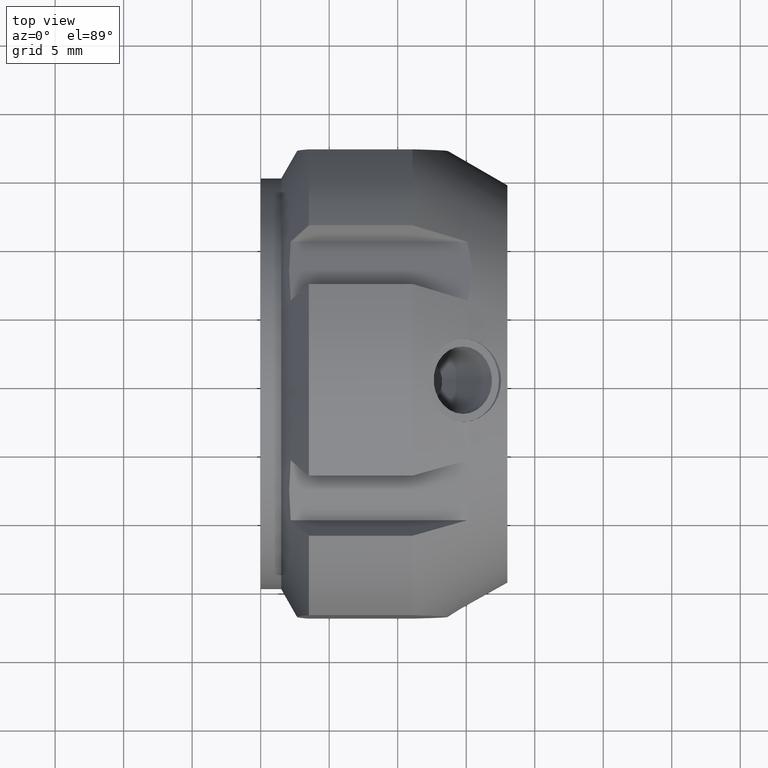
[diagram: clean part render]
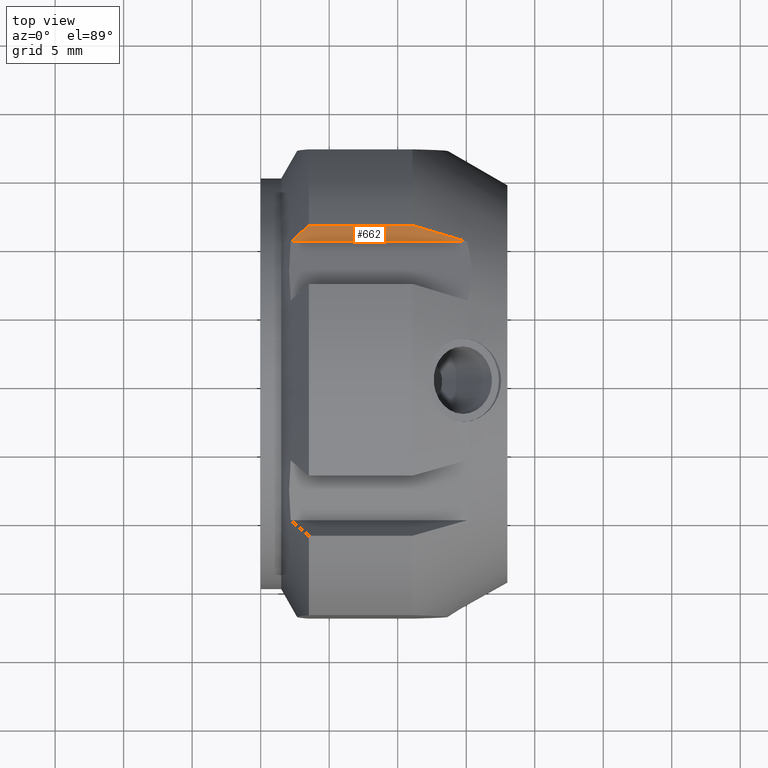
[diagram: same view with one face highlighted and labeled with its STEP entity id]
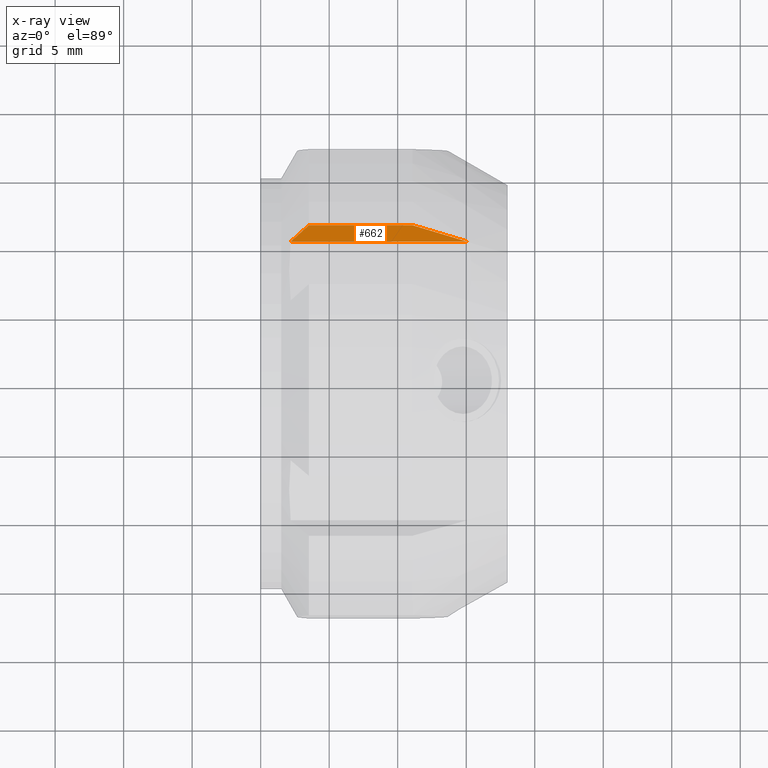
[diagram: x-ray of the same camera — body ghosted, the highlighted face saturated]
A machine part, top view. The second image highlights one B-rep face of the part: STEP entity #662.
The next image is the same camera in x-ray: the body ghosted, the highlighted face saturated — about 0% of this face is hidden behind the body in this view.
In plain terms, the highlighted planar face has unit normal (0, 0.866, -0.5).
Its self-contained STEP definition (entity closure, byte-faithful):
#487=CARTESIAN_POINT('',(2.189434013992775,10.165063509461094,12.606406460551018));
#488=VERTEX_POINT('',#487);
#502=CARTESIAN_POINT('',(3.520725942163683,11.330214899372773,14.624507866387543));
#503=VERTEX_POINT('',#502);
#504=CARTESIAN_POINT('',(2.189434013992775,10.165063509461094,12.606406460551018));
#505=CARTESIAN_POINT('',(2.809896670171859,10.708919661000643,13.548392947026397));
#506=CARTESIAN_POINT('',(3.520725942163683,11.33021489937277,14.624507866387544));
#514=(BOUNDED_CURVE()B_SPLINE_CURVE(2,(#504,#505,#506),.UNSPECIFIED.,.F.,.U.)B_SPLINE_CURVE_WITH_KNOTS((3,3),(0.149067659542989,0.407623225126853),.UNSPECIFIED.)CURVE()GEOMETRIC_REPRESENTATION_ITEM()RATIONAL_B_SPLINE_CURVE((1.002612268821344,1.003571604481881,1.0))REPRESENTATION_ITEM(''));
#515=EDGE_CURVE('',#488,#503,#514,.T.);
#608=CARTESIAN_POINT('',(15.065672554237217,10.165063509461094,12.606406460551018));
#609=VERTEX_POINT('',#608);
#623=CARTESIAN_POINT('',(2.189434013992775,10.165063509461094,12.606406460551018));
#624=DIRECTION('',(1.0,0.0,0.0));
#625=VECTOR('',#624,12.876238540244442);
#626=LINE('',#623,#625);
#627=EDGE_CURVE('',#488,#609,#626,.T.);
#632=CARTESIAN_POINT('',(0.0,10.165063509461094,12.606406460551018));
#633=DIRECTION('',(0.0,0.866025403784439,-0.499999999999999));
#634=DIRECTION('',(0.0,0.499999999999999,0.866025403784439));
#635=AXIS2_PLACEMENT_3D('',#632,#633,#634);
#636=PLANE('',#635);
#637=ORIENTED_EDGE('',*,*,#515,.F.);
#638=ORIENTED_EDGE('',*,*,#627,.T.);
#639=CARTESIAN_POINT('',(11.071796769724479,11.330214899372773,14.624507866387546));
#640=VERTEX_POINT('',#639);
#641=CARTESIAN_POINT('',(11.071796769724482,11.330214899372773,14.624507866387544));
#642=CARTESIAN_POINT('',(13.204284585649592,10.708919661015381,13.548392947051928));
#643=CARTESIAN_POINT('',(15.065672554237217,10.165063509461094,12.606406460551018));
#651=(BOUNDED_CURVE()B_SPLINE_CURVE(2,(#641,#642,#643),.UNSPECIFIED.,.F.,.U.)B_SPLINE_CURVE_WITH_KNOTS((3,3),(0.0,0.43790397564983),.UNSPECIFIED.)CURVE()GEOMETRIC_REPRESENTATION_ITEM()RATIONAL_B_SPLINE_CURVE((1.0,1.004151789649042,1.003771865033865))REPRESENTATION_ITEM(''));
#652=EDGE_CURVE('',#640,#609,#651,.T.);
#653=ORIENTED_EDGE('',*,*,#652,.F.);
#654=CARTESIAN_POINT('',(3.520725942163683,11.330214899372773,14.624507866387543));
#655=DIRECTION('',(1.0,0.0,0.0));
#656=VECTOR('',#655,7.551070827560796);
#657=LINE('',#654,#656);
#658=EDGE_CURVE('',#503,#640,#657,.T.);
#659=ORIENTED_EDGE('',*,*,#658,.F.);
#660=EDGE_LOOP('',(#637,#638,#653,#659));
#661=FACE_OUTER_BOUND('',#660,.T.);
#662=ADVANCED_FACE('',(#661),#636,.F.);